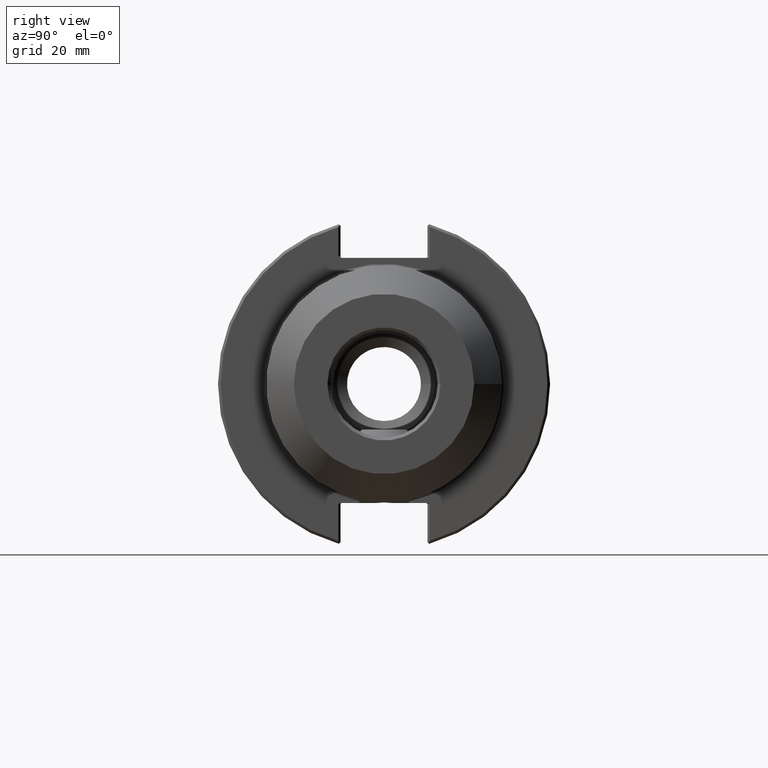
[diagram: clean part render]
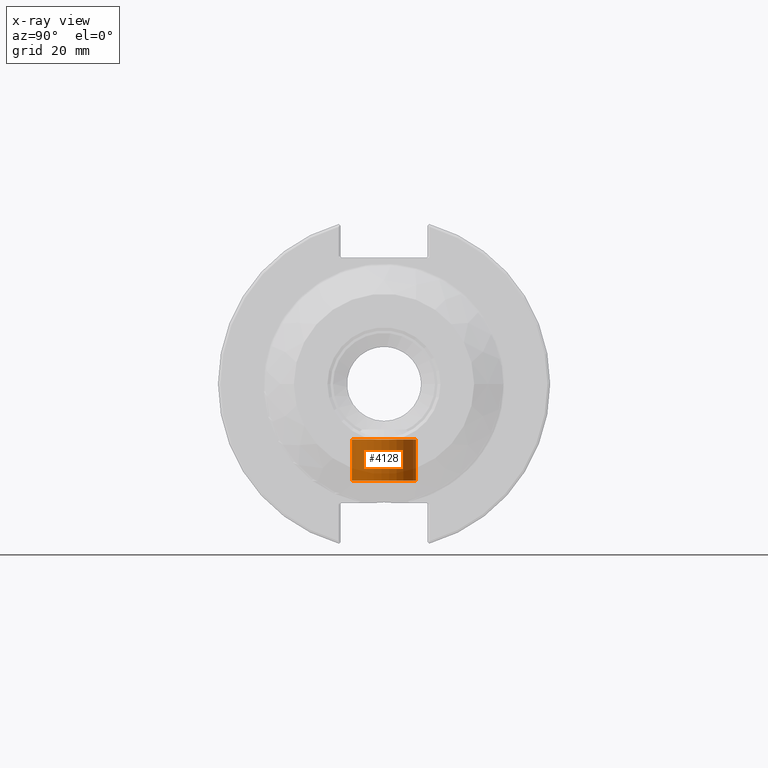
[diagram: x-ray — body ghosted, one internal face saturated and labeled with its STEP entity id]
A machine part, right view, then the same camera in x-ray: the body is ghosted and one INTERNAL B-rep face — a face not visible from any outside direction — is saturated and labeled: STEP entity #4128.
In plain terms, the highlighted cylindrical surface (bore or boss wall) has radius 9.525 mm, axis along (-0, -0, 1).
Its self-contained STEP definition (entity closure, byte-faithful):
#4086=CARTESIAN_POINT('',(0.375,-4.592425E-017,0.029527559055118));
#4087=VERTEX_POINT('',#4086);
#4088=CARTESIAN_POINT('',(0.0,0.0,0.029527559055118));
#4089=DIRECTION('',(0.0,0.0,-1.0));
#4090=DIRECTION('',(-1.0,0.0,0.0));
#4091=AXIS2_PLACEMENT_3D('',#4088,#4089,#4090);
#4092=CIRCLE('',#4091,0.375);
#4093=EDGE_CURVE('',#4087,#4087,#4092,.T.);
#4109=CARTESIAN_POINT('',(0.0,0.0,0.0));
#4110=DIRECTION('',(0.0,0.0,1.0));
#4111=DIRECTION('',(-1.0,0.0,0.0));
#4112=AXIS2_PLACEMENT_3D('',#4109,#4110,#4111);
#4113=CYLINDRICAL_SURFACE('',#4112,0.375);
#4114=CARTESIAN_POINT('',(0.375,4.592425E-017,0.506889763779528));
#4115=VERTEX_POINT('',#4114);
#4116=CARTESIAN_POINT('',(0.0,0.0,0.506889763779528));
#4117=DIRECTION('',(0.0,0.0,1.0));
#4118=DIRECTION('',(-1.0,0.0,0.0));
#4119=AXIS2_PLACEMENT_3D('',#4116,#4117,#4118);
#4120=CIRCLE('',#4119,0.375);
#4121=EDGE_CURVE('',#4115,#4115,#4120,.T.);
#4122=ORIENTED_EDGE('',*,*,#4121,.F.);
#4123=EDGE_LOOP('',(#4122));
#4124=FACE_OUTER_BOUND('',#4123,.T.);
#4125=ORIENTED_EDGE('',*,*,#4093,.F.);
#4126=EDGE_LOOP('',(#4125));
#4127=FACE_BOUND('',#4126,.T.);
#4128=ADVANCED_FACE('',(#4124,#4127),#4113,.T.);